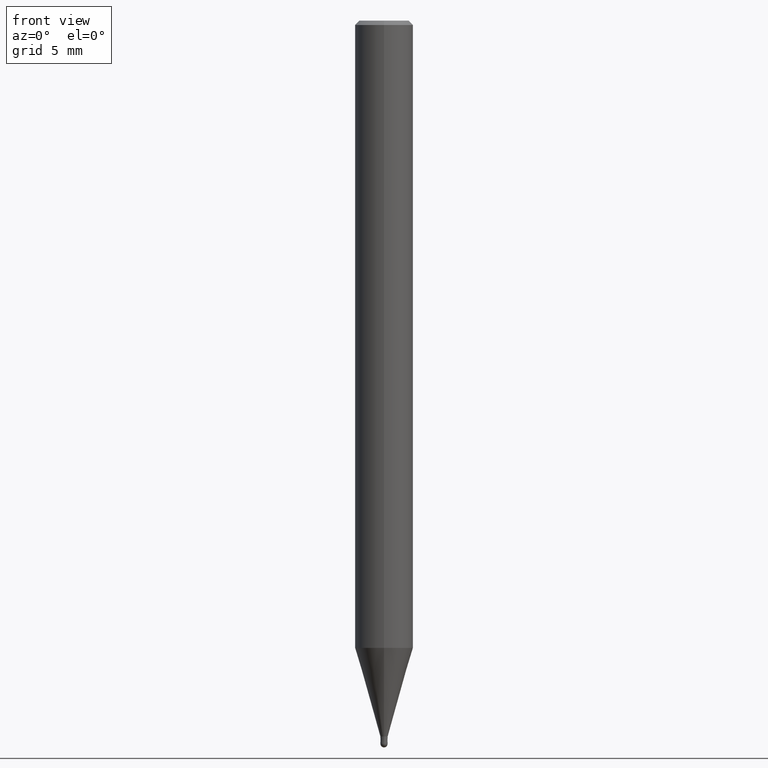
[diagram: clean part render]
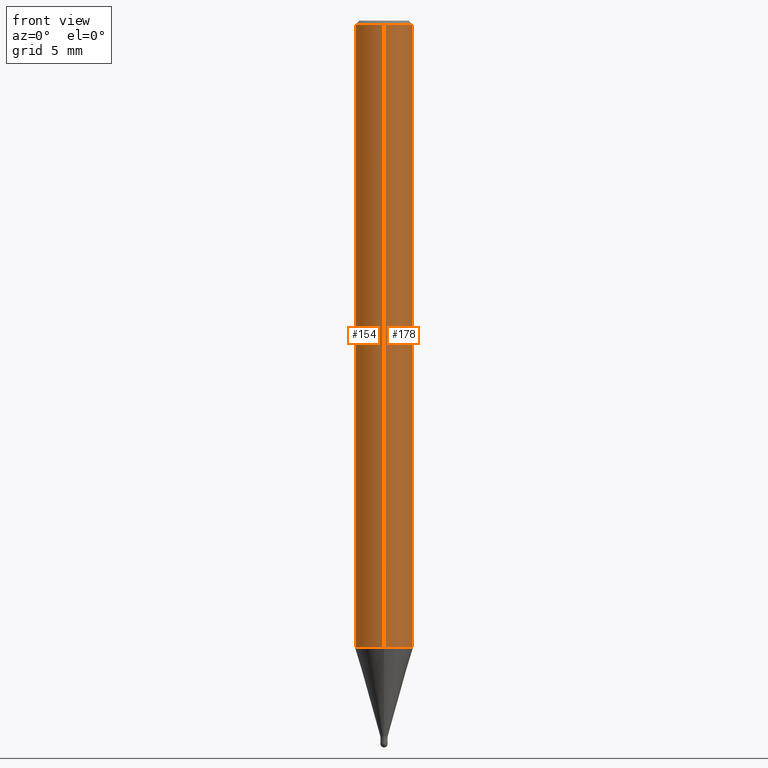
[diagram: same view with one multi-face feature highlighted, each face labeled with its STEP entity id]
A machine part, front view. The highlighted faces form ONE feature: a constant-radius fillet chain: 2 tangent blend faces with common blend radius 2 mm. The faces share edges in the B-rep.
Their STEP definitions:
[1] entity #178 (Cylinder):
#96=VERTEX_POINT('',#223);
#108=EDGE_CURVE('',#96,#162,#237,.T.);
#110=EDGE_CURVE('',#148,#142,#239,.T.);
#142=VERTEX_POINT('',#276);
#144=EDGE_CURVE('',#96,#142,#278,.T.);
#148=VERTEX_POINT('',#282);
#152=EDGE_CURVE('',#162,#148,#286,.T.);
#162=VERTEX_POINT('',#299);
#178=ADVANCED_FACE('',(#317),#318,.T.);
#223=CARTESIAN_POINT('',(0.0,2.0,-0.299999999999997));
#237=LINE('',#377,#378);
#239=LINE('',#381,#382);
#276=CARTESIAN_POINT('',(2.44921270764475E-016,-2.0,-0.299999999999997));
#278=CIRCLE('',#429,2.0);
#282=CARTESIAN_POINT('',(2.44921270764475E-016,-2.0,-43.147));
#286=CIRCLE('',#440,2.0);
#299=CARTESIAN_POINT('',(0.0,2.0,-43.147));
#317=FACE_OUTER_BOUND('',#471,.T.);
#318=CYLINDRICAL_SURFACE('',#472,2.0);
#377=CARTESIAN_POINT('',(-2.44921270764475E-016,2.0,-21.7235));
#378=VECTOR('',#534,1.0);
#381=CARTESIAN_POINT('',(2.44921270764475E-016,-2.0,-21.7235));
#382=VECTOR('',#535,1.0);
#429=AXIS2_PLACEMENT_3D('',#587,#588,#589);
#440=AXIS2_PLACEMENT_3D('',#591,#592,#593);
#471=EDGE_LOOP('',(#637,#638,#639,#640));
#472=AXIS2_PLACEMENT_3D('',#641,#642,#643);
#534=DIRECTION('',(0.0,0.0,-1.0));
#535=DIRECTION('',(-0.0,-0.0,1.0));
#587=CARTESIAN_POINT('',(0.0,0.0,-0.299999999999997));
#588=DIRECTION('',(0.0,0.0,-1.0));
#589=DIRECTION('',(0.0,1.0,0.0));
#591=CARTESIAN_POINT('',(0.0,0.0,-43.147));
#592=DIRECTION('',(0.0,0.0,-1.0));
#593=DIRECTION('',(0.0,1.0,0.0));
#637=ORIENTED_EDGE('',*,*,#108,.F.);
#638=ORIENTED_EDGE('',*,*,#144,.T.);
#639=ORIENTED_EDGE('',*,*,#110,.F.);
#640=ORIENTED_EDGE('',*,*,#152,.F.);
#641=CARTESIAN_POINT('',(0.0,0.0,-21.7235));
#642=DIRECTION('',(-0.0,-0.0,1.0));
#643=DIRECTION('',(0.0,1.0,0.0));
[2] entity #154 (Cylinder):
#96=VERTEX_POINT('',#223);
#100=EDGE_CURVE('',#142,#96,#227,.T.);
#108=EDGE_CURVE('',#96,#162,#237,.T.);
#110=EDGE_CURVE('',#148,#142,#239,.T.);
#140=EDGE_CURVE('',#148,#162,#274,.T.);
#142=VERTEX_POINT('',#276);
#148=VERTEX_POINT('',#282);
#154=ADVANCED_FACE('',(#288),#289,.T.);
#162=VERTEX_POINT('',#299);
#223=CARTESIAN_POINT('',(0.0,2.0,-0.299999999999997));
#227=CIRCLE('',#365,2.0);
#237=LINE('',#377,#378);
#239=LINE('',#381,#382);
#274=CIRCLE('',#424,2.0);
#276=CARTESIAN_POINT('',(2.44921270764475E-016,-2.0,-0.299999999999997));
#282=CARTESIAN_POINT('',(2.44921270764475E-016,-2.0,-43.147));
#288=FACE_OUTER_BOUND('',#442,.T.);
#289=CYLINDRICAL_SURFACE('',#443,2.0);
#299=CARTESIAN_POINT('',(0.0,2.0,-43.147));
#365=AXIS2_PLACEMENT_3D('',#512,#513,#514);
#377=CARTESIAN_POINT('',(-2.44921270764475E-016,2.0,-21.7235));
#378=VECTOR('',#534,1.0);
#381=CARTESIAN_POINT('',(2.44921270764475E-016,-2.0,-21.7235));
#382=VECTOR('',#535,1.0);
#424=AXIS2_PLACEMENT_3D('',#584,#585,#586);
#442=EDGE_LOOP('',(#595,#596,#597,#598));
#443=AXIS2_PLACEMENT_3D('',#599,#600,#601);
#512=CARTESIAN_POINT('',(0.0,0.0,-0.299999999999997));
#513=DIRECTION('',(0.0,0.0,-1.0));
#514=DIRECTION('',(0.0,1.0,0.0));
#534=DIRECTION('',(0.0,0.0,-1.0));
#535=DIRECTION('',(-0.0,-0.0,1.0));
#584=CARTESIAN_POINT('',(0.0,0.0,-43.147));
#585=DIRECTION('',(0.0,0.0,-1.0));
#586=DIRECTION('',(0.0,1.0,0.0));
#595=ORIENTED_EDGE('',*,*,#108,.T.);
#596=ORIENTED_EDGE('',*,*,#140,.F.);
#597=ORIENTED_EDGE('',*,*,#110,.T.);
#598=ORIENTED_EDGE('',*,*,#100,.T.);
#599=CARTESIAN_POINT('',(0.0,0.0,-21.7235));
#600=DIRECTION('',(-0.0,-0.0,1.0));
#601=DIRECTION('',(0.0,1.0,0.0));